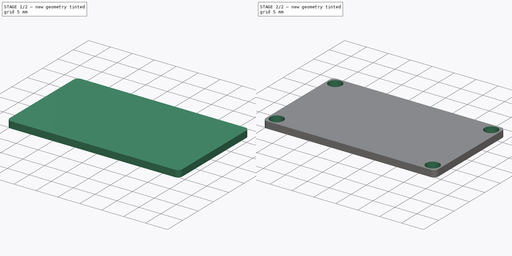
[diagram: build sequence overview — one tinted view per stage of 2, left to right]
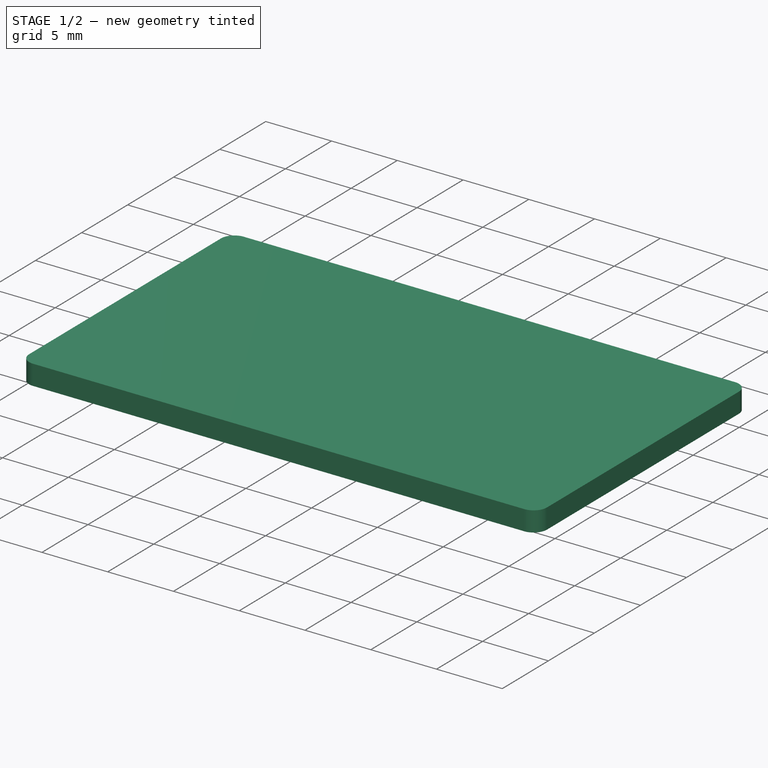
[diagram: stage 1 of 2 — iso view after this stage's code; geometry added in this stage tinted green]
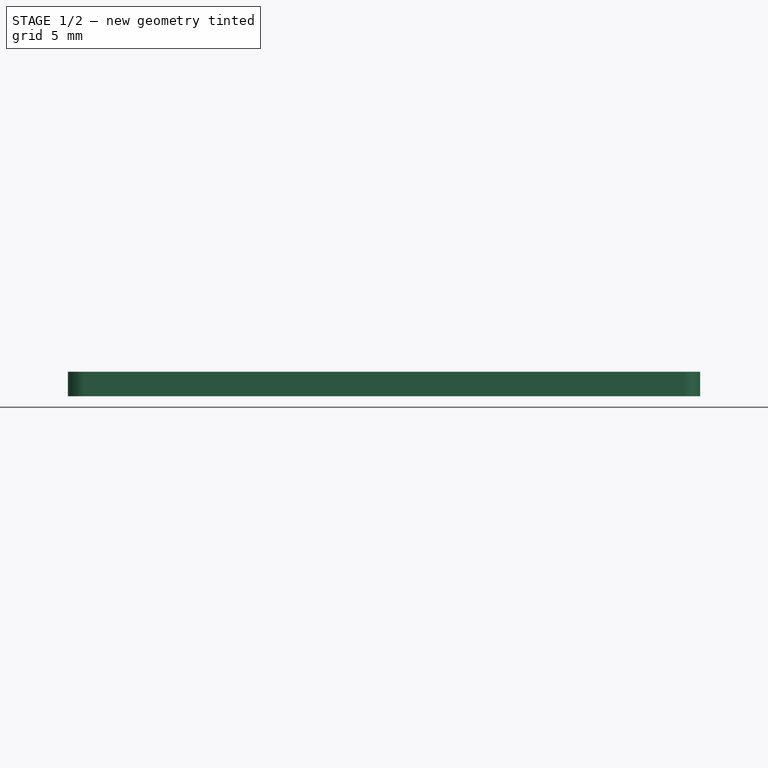
[diagram: stage 1 of 2 — front view after this stage's code; geometry added in this stage tinted green]
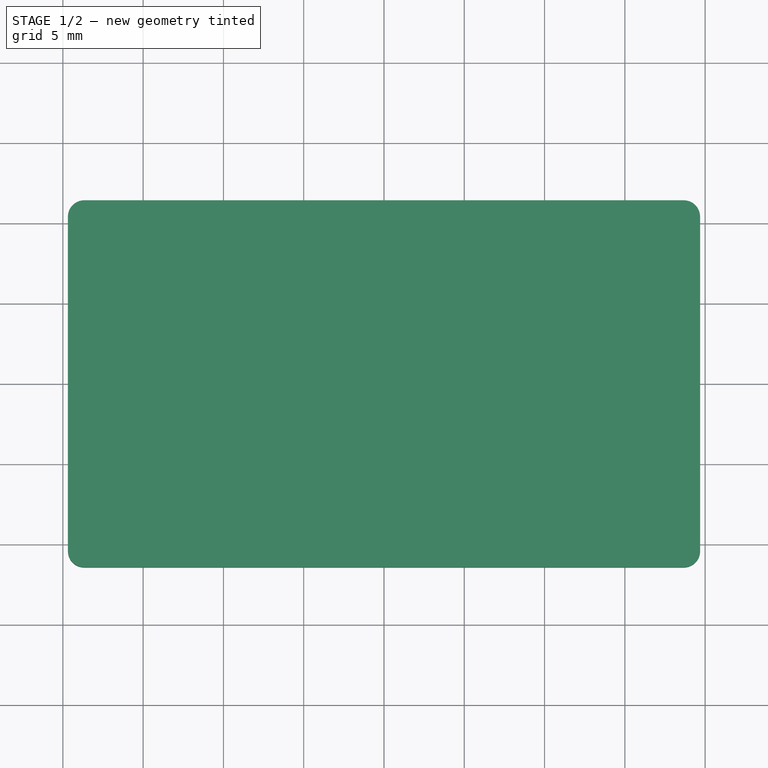
[diagram: stage 1 of 2 — top view after this stage's code; geometry added in this stage tinted green]
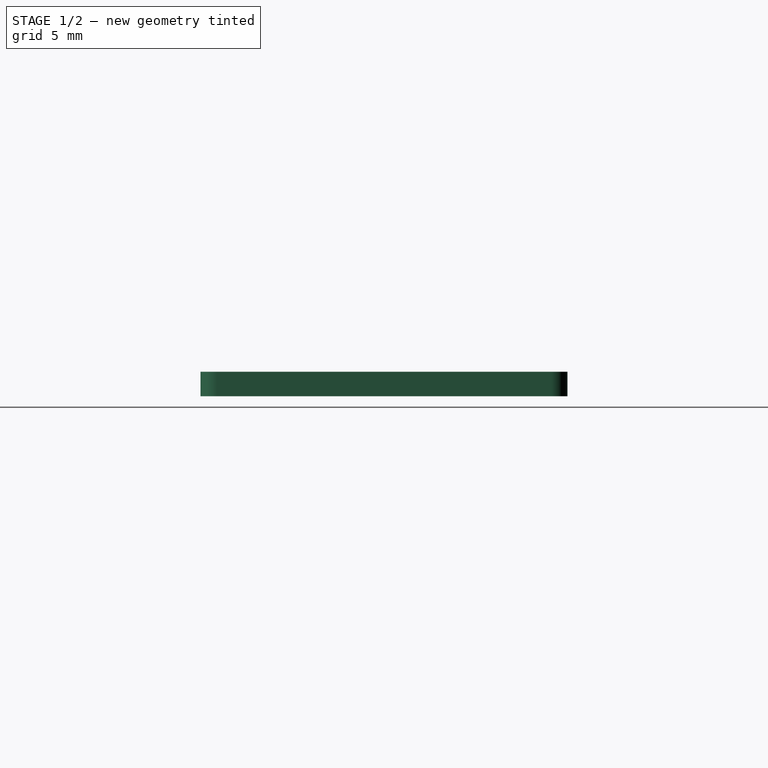
[diagram: stage 1 of 2 — right view after this stage's code; geometry added in this stage tinted green]
FCSTD DOCUMENT  (FreeCAD 0.16R5239 (Git))
Label: BlueFruit
License: All rights reserved
LicenseURL: http://en.wikipedia.org/wiki/All_rights_reserved
objects: Part::Feature×2, Sketcher::SketchObject×2, PartDesign::Pad×1, PartDesign::Fillet×1, PartDesign::Pocket×1
note: 9 computed .brp shape members not serialized (recipe doc carries the construction recipe); baked Part::Feature solids carry a one-line shape summary decoded from their .brp

FEATURE [Part::Feature] Part__Feature001  label="Fusion"
  Placement = pos=(0,10.16,0) rot=(1,0,0;3.14159rad)
  shape: bbox 30.48 x 2.49 x 11.54 mm, 362 faces (baked)
FEATURE [Sketcher::SketchObject] Sketch
  sketch-geometry (4):
    g0: LineSegment StartX=-19.685 StartY=11.43 StartZ=0 EndX=19.685 EndY=11.43 EndZ=0
    g1: LineSegment StartX=19.685 StartY=11.43 StartZ=0 EndX=19.685 EndY=-11.43 EndZ=0
    g2: LineSegment StartX=19.685 StartY=-11.43 StartZ=0 EndX=-19.685 EndY=-11.43 EndZ=0
    g3: LineSegment StartX=-19.685 StartY=-11.43 StartZ=0 EndX=-19.685 EndY=11.43 EndZ=0
  constraints (12):
    c: Coincident(g0,g1)
    c: Coincident(g1,g2)
    c: Coincident(g2,g3)
    c: Coincident(g3,g0)
    c: Horizontal(g0)
    c: Horizontal(g2)
    c: Vertical(g1)
    c: Vertical(g3)
    c: DistanceX(g0) = 39.37
    c: DistanceY(g3) = 22.86
    c: Symmetric(g0,g0,g-2)
    c: Symmetric(g0,g2,g-1)
FEATURE [PartDesign::Pad] Pad
  Length = 1.524
  Length2 = 100
  Sketch = -> Sketch
  Type = 0
FEATURE [PartDesign::Fillet] Fillet
  Base = -> Pad [Edge2,Edge5,Edge8,Edge1]
  Radius = 1.016
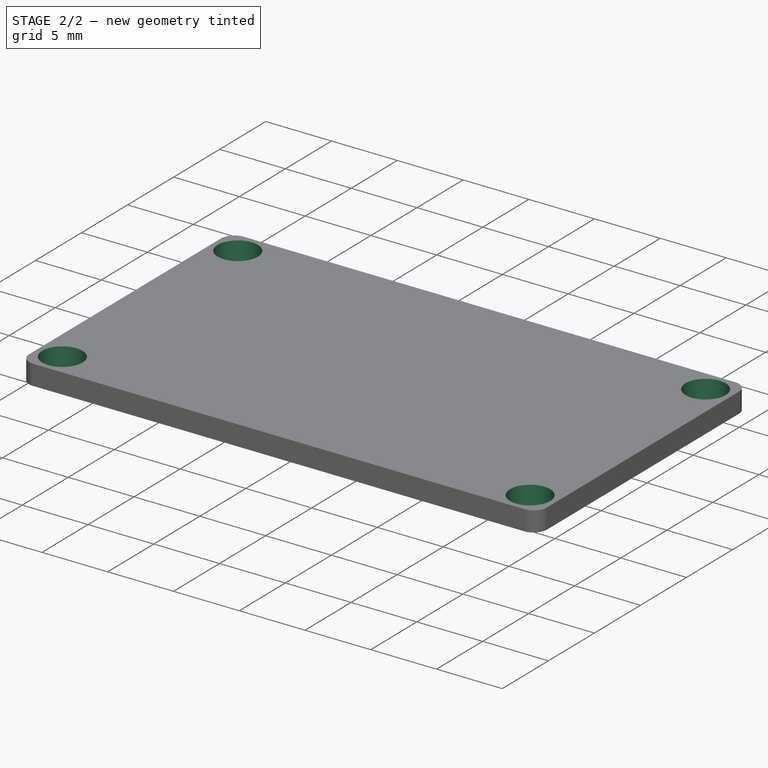
[diagram: stage 2 of 2 — iso view after this stage's code; geometry added in this stage tinted green]
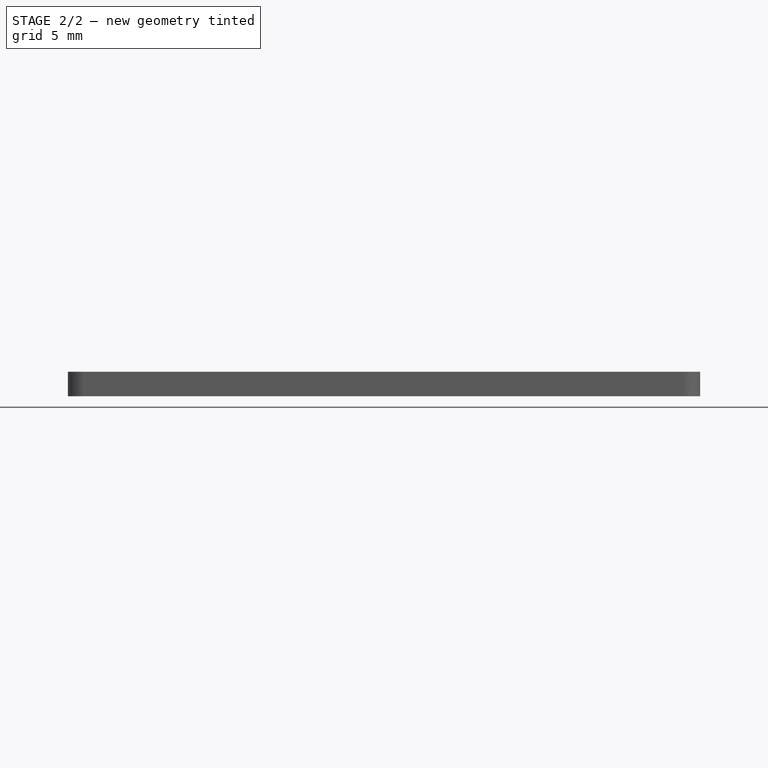
[diagram: stage 2 of 2 — front view after this stage's code; geometry added in this stage tinted green]
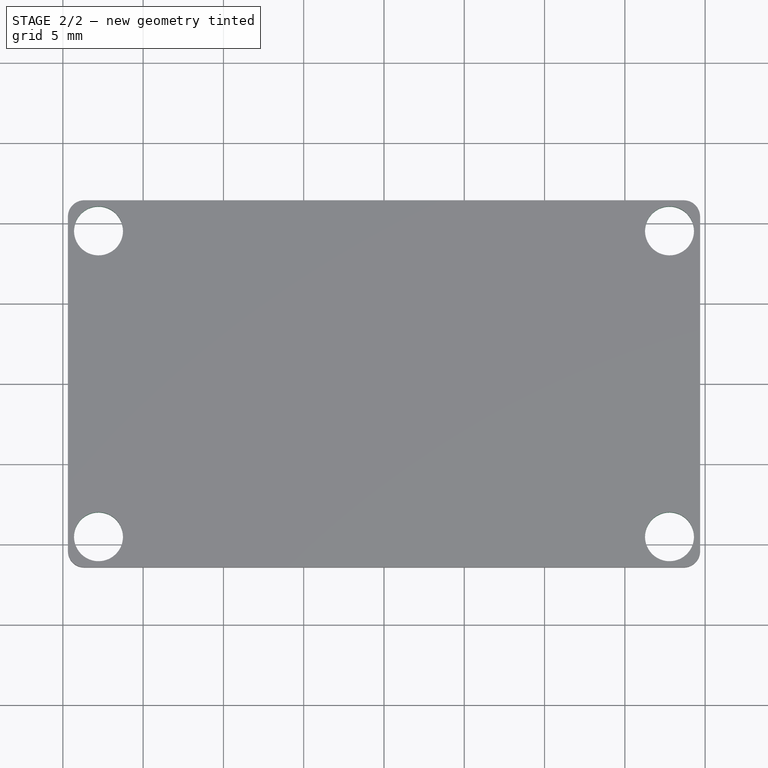
[diagram: stage 2 of 2 — top view after this stage's code; geometry added in this stage tinted green]
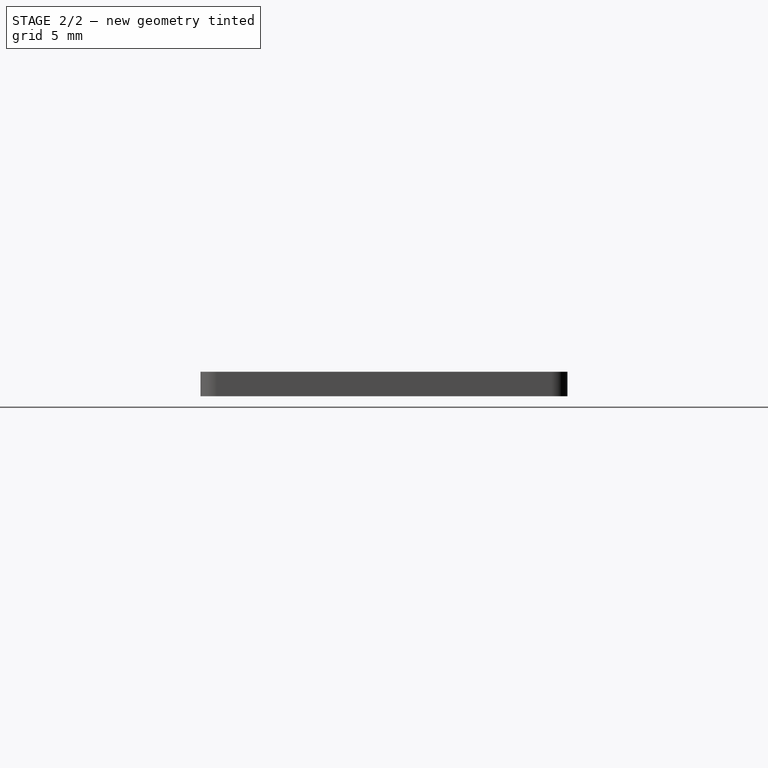
[diagram: stage 2 of 2 — right view after this stage's code; geometry added in this stage tinted green]
FEATURE [Part::Feature] Part__Feature001001  label="Fusion001"
  Placement = pos=(0,-10.16,0) rot=(1,0,0;3.14159rad)
  shape: bbox 30.48 x 2.49 x 11.54 mm, 362 faces (baked)
FEATURE [Sketcher::SketchObject] Sketch001
  Placement = pos=(0,0,1.524) rot=(0,0,1;0rad)
  Support = -> Fillet [Face5]
  sketch-geometry (4):
    g0: Circle CenterX=-17.78 CenterY=9.525 CenterZ=0 NormalX=0 NormalY=0 NormalZ=1 Radius=1.524
    g1: Circle CenterX=-17.78 CenterY=-9.525 CenterZ=0 NormalX=0 NormalY=0 NormalZ=1 Radius=1.524
    g2: Circle CenterX=17.78 CenterY=9.525 CenterZ=0 NormalX=0 NormalY=0 NormalZ=1 Radius=1.524
    g3: Circle CenterX=17.78 CenterY=-9.525 CenterZ=0 NormalX=0 NormalY=0 NormalZ=1 Radius=1.524
  constraints (9):
    c: Radius(g0) = 1.524
    c: Radius(g1) = 1.524
    c: Radius(g3) = 1.524
    c: Radius(g2) = 1.524
    c: Symmetric(g0,g2,g-2)
    c: Symmetric(g1,g3,g-2)
    c: Symmetric(g0,g1,g-1)
    c: DistanceX(g0,g2) = 35.56
    c: DistanceY(g0,g1) = -19.05
FEATURE [PartDesign::Pocket] Pocket
  Length = 4.99999
  Sketch = -> Sketch001
  Type = 1
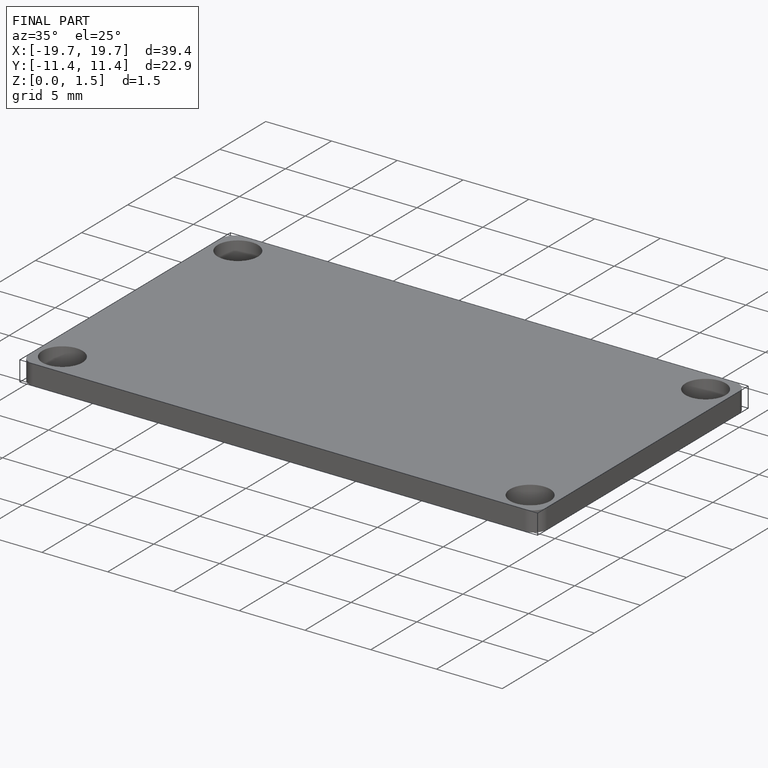
[diagram: finished part — iso view with bounding-box wireframe]
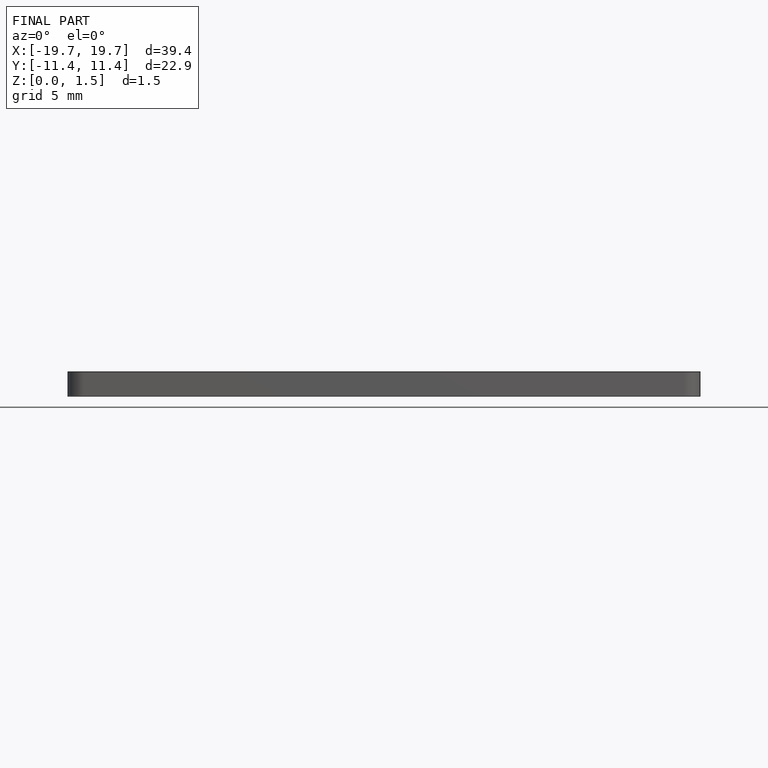
[diagram: finished part — front view with bounding-box wireframe]
